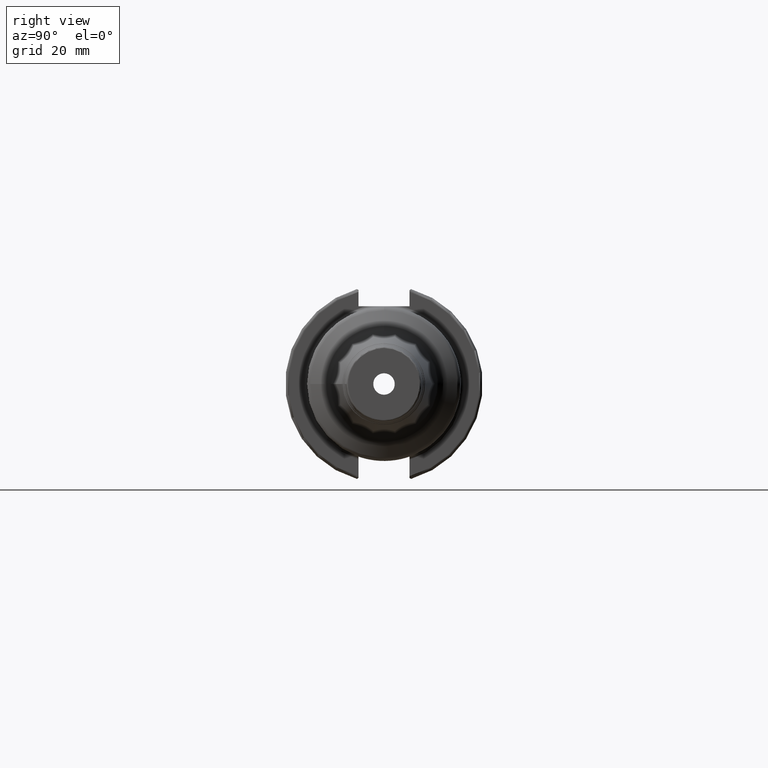
[diagram: clean part render]
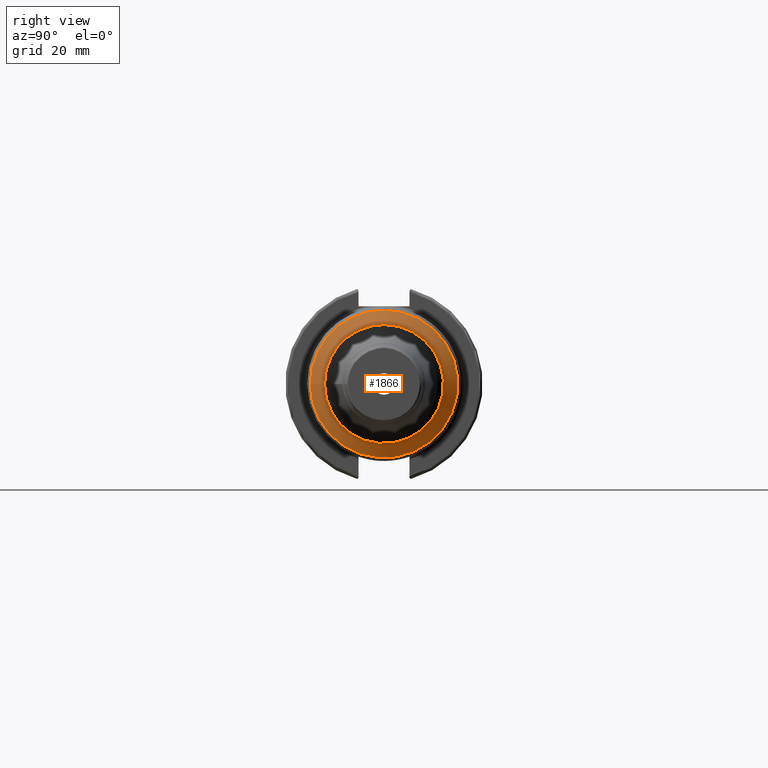
[diagram: same view with one face highlighted and labeled with its STEP entity id]
A machine part, right view. The second image highlights one B-rep face of the part: STEP entity #1866.
In plain terms, the highlighted conical surface has half-angle 60 deg.
Its self-contained STEP definition (entity closure, byte-faithful):
#181=LINE('',#3034,#276);
#276=VECTOR('',#2408,20.9953889641521);
#367=CONICAL_SURFACE('',#2054,20.9953889641521,1.0471975511966);
#405=FACE_OUTER_BOUND('',#514,.T.);
#514=EDGE_LOOP('',(#1367,#1368,#1369,#1370,#1371,#1372));
#667=CIRCLE('',#2051,23.75);
#668=CIRCLE('',#2052,23.75);
#670=CIRCLE('',#2055,19.1216316443699);
#671=CIRCLE('',#2056,19.1216316443699);
#792=VERTEX_POINT('',#3025);
#793=VERTEX_POINT('',#3026);
#794=VERTEX_POINT('',#3031);
#795=VERTEX_POINT('',#3032);
#1008=EDGE_CURVE('',#792,#793,#667,.T.);
#1009=EDGE_CURVE('',#793,#792,#668,.T.);
#1011=EDGE_CURVE('',#794,#795,#670,.T.);
#1012=EDGE_CURVE('',#794,#793,#181,.T.);
#1013=EDGE_CURVE('',#795,#794,#671,.T.);
#1367=ORIENTED_EDGE('',*,*,#1011,.F.);
#1368=ORIENTED_EDGE('',*,*,#1012,.T.);
#1369=ORIENTED_EDGE('',*,*,#1008,.F.);
#1370=ORIENTED_EDGE('',*,*,#1009,.F.);
#1371=ORIENTED_EDGE('',*,*,#1012,.F.);
#1372=ORIENTED_EDGE('',*,*,#1013,.F.);
#1866=ADVANCED_FACE('',(#405),#367,.T.);
#2051=AXIS2_PLACEMENT_3D('',#3027,#2398,#2399);
#2052=AXIS2_PLACEMENT_3D('',#3028,#2400,#2401);
#2054=AXIS2_PLACEMENT_3D('',#3030,#2404,#2405);
#2055=AXIS2_PLACEMENT_3D('',#3033,#2406,#2407);
#2056=AXIS2_PLACEMENT_3D('',#3035,#2409,#2410);
#2398=DIRECTION('center_axis',(-1.,0.,0.));
#2399=DIRECTION('ref_axis',(0.,-1.,3.06161699786838E-17));
#2400=DIRECTION('center_axis',(-1.,0.,0.));
#2401=DIRECTION('ref_axis',(0.,-1.,3.06161699786838E-17));
#2404=DIRECTION('center_axis',(-1.,0.,0.));
#2405=DIRECTION('ref_axis',(0.,1.,0.));
#2406=DIRECTION('center_axis',(1.,0.,0.));
#2407=DIRECTION('ref_axis',(0.,-1.,3.06161699786838E-17));
#2408=DIRECTION('',(-0.5,-0.866025403784438,-1.06057523872491E-16));
#2409=DIRECTION('center_axis',(1.,0.,0.));
#2410=DIRECTION('ref_axis',(0.,-1.,3.06161699786838E-17));
#3025=CARTESIAN_POINT('',(46.2418988846913,-2.90853614797496E-15,23.75));
#3026=CARTESIAN_POINT('',(46.2418988846913,-23.75,-2.90853614797496E-15));
#3027=CARTESIAN_POINT('Origin',(46.2418988846913,0.,-3.6356701849687E-15));
#3028=CARTESIAN_POINT('Origin',(46.2418988846913,0.,-3.6356701849687E-15));
#3030=CARTESIAN_POINT('Origin',(47.8322743077509,0.,0.));
#3031=CARTESIAN_POINT('',(48.9140886007231,-19.1216316443699,-2.34172449877523E-15));
#3032=CARTESIAN_POINT('',(48.9140886007231,-2.34172449877523E-15,19.1216316443699));
#3033=CARTESIAN_POINT('Origin',(48.9140886007231,0.,-2.92715562346904E-15));
#3034=CARTESIAN_POINT('',(47.8322743077509,-20.9953889641521,-2.57119358918025E-15));
#3035=CARTESIAN_POINT('Origin',(48.9140886007231,0.,-2.92715562346904E-15));